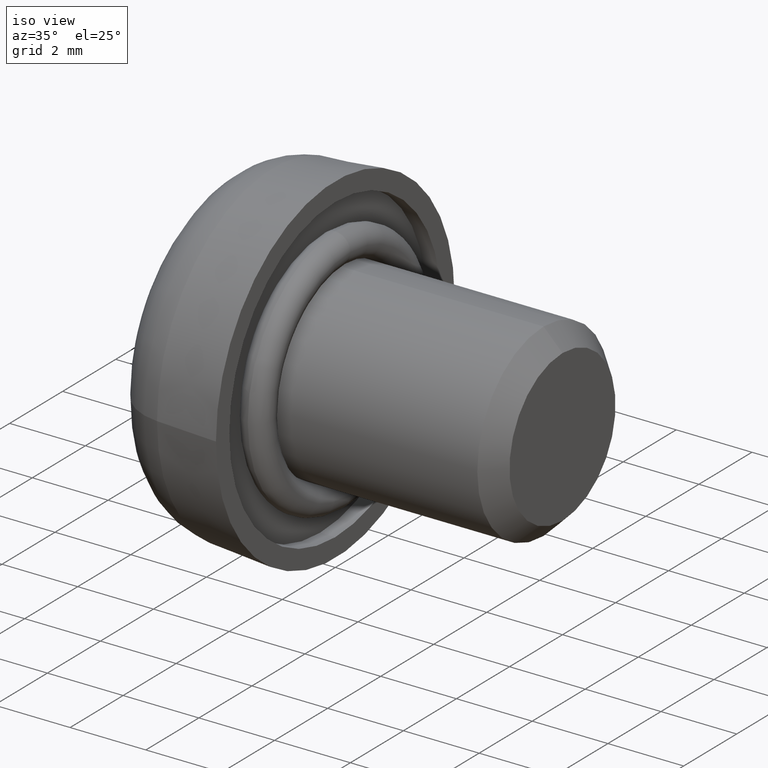
[diagram: clean part render]
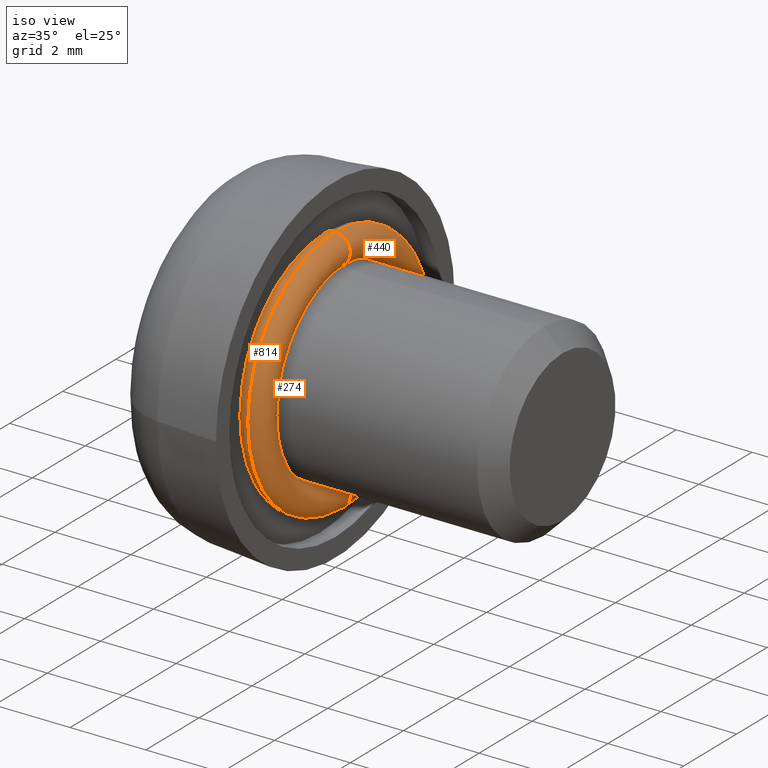
[diagram: same view with one multi-face feature highlighted, each face labeled with its STEP entity id]
A machine part, iso view. The highlighted faces form ONE feature: a constant-radius fillet chain: 3 tangent blend faces with common blend radius 0.4 mm. The faces share edges in the B-rep.
Their STEP definitions:
[1] entity #274 (Torus):
#43 = CARTESIAN_POINT ( 'NONE',  ( 0.0000000000000000000, 0.0000000000000000000, 0.0000000000000000000 ) ) ;
#64 = AXIS2_PLACEMENT_3D ( 'NONE', #313, #1007, #1226 ) ;
#66 = EDGE_CURVE ( 'NONE', #695, #1126, #896, .T. ) ;
#155 = VERTEX_POINT ( 'NONE', #194 ) ;
#185 = FACE_OUTER_BOUND ( 'NONE', #783, .T. ) ;
#194 = CARTESIAN_POINT ( 'NONE',  ( -4.898587196589412500E-017, 0.0000000000000000000, -2.499999999999999600 ) ) ;
#234 = DIRECTION ( 'NONE',  ( 0.0000000000000000000, 0.0000000000000000000, -1.000000000000000000 ) ) ;
#274 = ADVANCED_FACE ( 'NONE', ( #185 ), #1209, .T. ) ;
#284 = AXIS2_PLACEMENT_3D ( 'NONE', #872, #290, #389 ) ;
#290 = DIRECTION ( 'NONE',  ( 1.000000000000000000, -0.0000000000000000000, -0.0000000000000000000 ) ) ;
#313 = CARTESIAN_POINT ( 'NONE',  ( 0.0000000000000000000, 0.0000000000000000000, 0.0000000000000000000 ) ) ;
#318 = CARTESIAN_POINT ( 'NONE',  ( -4.898587196589412500E-017, 3.061616997868382600E-016, 2.499999999999999600 ) ) ;
#389 = DIRECTION ( 'NONE',  ( 0.0000000000000000000, 0.0000000000000000000, -1.000000000000000000 ) ) ;
#404 = CARTESIAN_POINT ( 'NONE',  ( 0.0000000000000000000, 4.041334437186265500E-016, 3.299999999999999800 ) ) ;
#458 = ORIENTED_EDGE ( 'NONE', *, *, #938, .T. ) ;
#495 = CARTESIAN_POINT ( 'NONE',  ( 0.0000000000000000000, 3.551475717527323800E-016, 2.899999999999999900 ) ) ;
#558 = ORIENTED_EDGE ( 'NONE', *, *, #764, .F. ) ;
#583 = CARTESIAN_POINT ( 'NONE',  ( 0.0000000000000000000, 0.0000000000000000000, -3.299999999999999800 ) ) ;
#673 = DIRECTION ( 'NONE',  ( -0.0000000000000000000, -1.000000000000000000, -0.0000000000000000000 ) ) ;
#695 = VERTEX_POINT ( 'NONE', #404 ) ;
#737 = ORIENTED_EDGE ( 'NONE', *, *, #908, .T. ) ;
#740 = CIRCLE ( 'NONE', #284, 2.499999999999999600 ) ;
#764 = EDGE_CURVE ( 'NONE', #1126, #155, #740, .T. ) ;
#783 = EDGE_LOOP ( 'NONE', ( #954, #458, #737, #558 ) ) ;
#821 = DIRECTION ( 'NONE',  ( 1.000000000000000000, -0.0000000000000000000, -0.0000000000000000000 ) ) ;
#837 = CIRCLE ( 'NONE', #1074, 0.4000000000000001900 ) ;
#852 = AXIS2_PLACEMENT_3D ( 'NONE', #43, #821, #234 ) ;
#872 = CARTESIAN_POINT ( 'NONE',  ( -4.898587196589413700E-017, 0.0000000000000000000, 0.0000000000000000000 ) ) ;
#896 = CIRCLE ( 'NONE', #1029, 0.4000000000000001900 ) ;
#908 = EDGE_CURVE ( 'NONE', #1144, #155, #837, .T. ) ;
#925 = CARTESIAN_POINT ( 'NONE',  ( 0.0000000000000000000, 0.0000000000000000000, -2.899999999999999900 ) ) ;
#938 = EDGE_CURVE ( 'NONE', #695, #1144, #1069, .T. ) ;
#954 = ORIENTED_EDGE ( 'NONE', *, *, #66, .F. ) ;
#1007 = DIRECTION ( 'NONE',  ( 1.000000000000000000, -0.0000000000000000000, -0.0000000000000000000 ) ) ;
#1029 = AXIS2_PLACEMENT_3D ( 'NONE', #495, #1191, #1097 ) ;
#1069 = CIRCLE ( 'NONE', #64, 3.299999999999999800 ) ;
#1074 = AXIS2_PLACEMENT_3D ( 'NONE', #925, #673, #1087 ) ;
#1087 = DIRECTION ( 'NONE',  ( 0.0000000000000000000, 0.0000000000000000000, -1.000000000000000000 ) ) ;
#1097 = DIRECTION ( 'NONE',  ( 0.0000000000000000000, 1.224646799147353200E-016, 1.000000000000000000 ) ) ;
#1126 = VERTEX_POINT ( 'NONE', #318 ) ;
#1144 = VERTEX_POINT ( 'NONE', #583 ) ;
#1191 = DIRECTION ( 'NONE',  ( 0.0000000000000000000, 1.000000000000000000, -1.224646799147353200E-016 ) ) ;
#1209 = TOROIDAL_SURFACE ( 'NONE', #852, 2.899999999999999900, 0.4000000000000000800 ) ;
#1226 = DIRECTION ( 'NONE',  ( 0.0000000000000000000, 0.0000000000000000000, -1.000000000000000000 ) ) ;
[2] entity #814 (Torus):
#35 = DIRECTION ( 'NONE',  ( 1.000000000000000000, -0.0000000000000000000, -0.0000000000000000000 ) ) ;
#64 = AXIS2_PLACEMENT_3D ( 'NONE', #313, #1007, #1226 ) ;
#106 = CIRCLE ( 'NONE', #1093, 0.4000000000000001900 ) ;
#118 = DIRECTION ( 'NONE',  ( -0.0000000000000000000, -1.000000000000000000, -0.0000000000000000000 ) ) ;
#155 = VERTEX_POINT ( 'NONE', #194 ) ;
#194 = CARTESIAN_POINT ( 'NONE',  ( -4.898587196589412500E-017, 0.0000000000000000000, -2.499999999999999600 ) ) ;
#195 = ORIENTED_EDGE ( 'NONE', *, *, #938, .F. ) ;
#207 = CARTESIAN_POINT ( 'NONE',  ( 0.0000000000000000000, 0.0000000000000000000, -2.899999999999999900 ) ) ;
#284 = AXIS2_PLACEMENT_3D ( 'NONE', #872, #290, #389 ) ;
#290 = DIRECTION ( 'NONE',  ( 1.000000000000000000, -0.0000000000000000000, -0.0000000000000000000 ) ) ;
#303 = AXIS2_PLACEMENT_3D ( 'NONE', #377, #566, #672 ) ;
#313 = CARTESIAN_POINT ( 'NONE',  ( 0.0000000000000000000, 0.0000000000000000000, 0.0000000000000000000 ) ) ;
#318 = CARTESIAN_POINT ( 'NONE',  ( -4.898587196589412500E-017, 3.061616997868382600E-016, 2.499999999999999600 ) ) ;
#338 = ORIENTED_EDGE ( 'NONE', *, *, #1163, .F. ) ;
#363 = CIRCLE ( 'NONE', #303, 0.4000000000000001900 ) ;
#377 = CARTESIAN_POINT ( 'NONE',  ( 0.0000000000000000000, 3.551475717527323800E-016, 2.899999999999999900 ) ) ;
#389 = DIRECTION ( 'NONE',  ( 0.0000000000000000000, 0.0000000000000000000, -1.000000000000000000 ) ) ;
#404 = CARTESIAN_POINT ( 'NONE',  ( 0.0000000000000000000, 4.041334437186265500E-016, 3.299999999999999800 ) ) ;
#473 = TOROIDAL_SURFACE ( 'NONE', #745, 2.899999999999999900, 0.4000000000000000800 ) ;
#481 = EDGE_LOOP ( 'NONE', ( #195, #338, #1049, #1204 ) ) ;
#484 = EDGE_CURVE ( 'NONE', #155, #1144, #106, .T. ) ;
#566 = DIRECTION ( 'NONE',  ( 0.0000000000000000000, 1.000000000000000000, -1.224646799147353200E-016 ) ) ;
#583 = CARTESIAN_POINT ( 'NONE',  ( 0.0000000000000000000, 0.0000000000000000000, -3.299999999999999800 ) ) ;
#672 = DIRECTION ( 'NONE',  ( 0.0000000000000000000, 1.224646799147353200E-016, 1.000000000000000000 ) ) ;
#695 = VERTEX_POINT ( 'NONE', #404 ) ;
#740 = CIRCLE ( 'NONE', #284, 2.499999999999999600 ) ;
#745 = AXIS2_PLACEMENT_3D ( 'NONE', #1113, #35, #1188 ) ;
#764 = EDGE_CURVE ( 'NONE', #1126, #155, #740, .T. ) ;
#814 = ADVANCED_FACE ( 'NONE', ( #945 ), #473, .T. ) ;
#872 = CARTESIAN_POINT ( 'NONE',  ( -4.898587196589413700E-017, 0.0000000000000000000, 0.0000000000000000000 ) ) ;
#938 = EDGE_CURVE ( 'NONE', #695, #1144, #1069, .T. ) ;
#945 = FACE_OUTER_BOUND ( 'NONE', #481, .T. ) ;
#1007 = DIRECTION ( 'NONE',  ( 1.000000000000000000, -0.0000000000000000000, -0.0000000000000000000 ) ) ;
#1016 = DIRECTION ( 'NONE',  ( 0.0000000000000000000, 0.0000000000000000000, -1.000000000000000000 ) ) ;
#1049 = ORIENTED_EDGE ( 'NONE', *, *, #764, .T. ) ;
#1069 = CIRCLE ( 'NONE', #64, 3.299999999999999800 ) ;
#1093 = AXIS2_PLACEMENT_3D ( 'NONE', #207, #118, #1016 ) ;
#1113 = CARTESIAN_POINT ( 'NONE',  ( 0.0000000000000000000, 0.0000000000000000000, 0.0000000000000000000 ) ) ;
#1126 = VERTEX_POINT ( 'NONE', #318 ) ;
#1144 = VERTEX_POINT ( 'NONE', #583 ) ;
#1163 = EDGE_CURVE ( 'NONE', #1126, #695, #363, .T. ) ;
#1188 = DIRECTION ( 'NONE',  ( 0.0000000000000000000, 0.0000000000000000000, -1.000000000000000000 ) ) ;
#1204 = ORIENTED_EDGE ( 'NONE', *, *, #484, .T. ) ;
#1226 = DIRECTION ( 'NONE',  ( 0.0000000000000000000, 0.0000000000000000000, -1.000000000000000000 ) ) ;
[3] entity #440 (Torus):
#14 = CARTESIAN_POINT ( 'NONE',  ( 0.0000000000000000000, 0.0000000000000000000, 0.0000000000000000000 ) ) ;
#66 = EDGE_CURVE ( 'NONE', #695, #1126, #896, .T. ) ;
#67 = ORIENTED_EDGE ( 'NONE', *, *, #66, .T. ) ;
#127 = CIRCLE ( 'NONE', #1011, 3.299999999999999800 ) ;
#154 = ORIENTED_EDGE ( 'NONE', *, *, #908, .F. ) ;
#155 = VERTEX_POINT ( 'NONE', #194 ) ;
#193 = ORIENTED_EDGE ( 'NONE', *, *, #252, .F. ) ;
#194 = CARTESIAN_POINT ( 'NONE',  ( -4.898587196589412500E-017, 0.0000000000000000000, -2.499999999999999600 ) ) ;
#210 = CARTESIAN_POINT ( 'NONE',  ( 0.0000000000000000000, 0.0000000000000000000, 0.0000000000000000000 ) ) ;
#252 = EDGE_CURVE ( 'NONE', #155, #1126, #968, .T. ) ;
#296 = DIRECTION ( 'NONE',  ( 0.0000000000000000000, 0.0000000000000000000, -1.000000000000000000 ) ) ;
#318 = CARTESIAN_POINT ( 'NONE',  ( -4.898587196589412500E-017, 3.061616997868382600E-016, 2.499999999999999600 ) ) ;
#404 = CARTESIAN_POINT ( 'NONE',  ( 0.0000000000000000000, 4.041334437186265500E-016, 3.299999999999999800 ) ) ;
#440 = ADVANCED_FACE ( 'NONE', ( #687 ), #1224, .T. ) ;
#495 = CARTESIAN_POINT ( 'NONE',  ( 0.0000000000000000000, 3.551475717527323800E-016, 2.899999999999999900 ) ) ;
#531 = DIRECTION ( 'NONE',  ( 0.0000000000000000000, 0.0000000000000000000, -1.000000000000000000 ) ) ;
#583 = CARTESIAN_POINT ( 'NONE',  ( 0.0000000000000000000, 0.0000000000000000000, -3.299999999999999800 ) ) ;
#585 = EDGE_LOOP ( 'NONE', ( #154, #978, #67, #193 ) ) ;
#601 = AXIS2_PLACEMENT_3D ( 'NONE', #735, #617, #531 ) ;
#602 = DIRECTION ( 'NONE',  ( 1.000000000000000000, -0.0000000000000000000, -0.0000000000000000000 ) ) ;
#617 = DIRECTION ( 'NONE',  ( 1.000000000000000000, -0.0000000000000000000, -0.0000000000000000000 ) ) ;
#656 = EDGE_CURVE ( 'NONE', #1144, #695, #127, .T. ) ;
#673 = DIRECTION ( 'NONE',  ( -0.0000000000000000000, -1.000000000000000000, -0.0000000000000000000 ) ) ;
#687 = FACE_OUTER_BOUND ( 'NONE', #585, .T. ) ;
#695 = VERTEX_POINT ( 'NONE', #404 ) ;
#735 = CARTESIAN_POINT ( 'NONE',  ( -4.898587196589413700E-017, 0.0000000000000000000, 0.0000000000000000000 ) ) ;
#786 = DIRECTION ( 'NONE',  ( 1.000000000000000000, -0.0000000000000000000, -0.0000000000000000000 ) ) ;
#837 = CIRCLE ( 'NONE', #1074, 0.4000000000000001900 ) ;
#896 = CIRCLE ( 'NONE', #1029, 0.4000000000000001900 ) ;
#908 = EDGE_CURVE ( 'NONE', #1144, #155, #837, .T. ) ;
#925 = CARTESIAN_POINT ( 'NONE',  ( 0.0000000000000000000, 0.0000000000000000000, -2.899999999999999900 ) ) ;
#959 = AXIS2_PLACEMENT_3D ( 'NONE', #210, #786, #296 ) ;
#968 = CIRCLE ( 'NONE', #601, 2.499999999999999600 ) ;
#978 = ORIENTED_EDGE ( 'NONE', *, *, #656, .T. ) ;
#1011 = AXIS2_PLACEMENT_3D ( 'NONE', #14, #602, #1194 ) ;
#1029 = AXIS2_PLACEMENT_3D ( 'NONE', #495, #1191, #1097 ) ;
#1074 = AXIS2_PLACEMENT_3D ( 'NONE', #925, #673, #1087 ) ;
#1087 = DIRECTION ( 'NONE',  ( 0.0000000000000000000, 0.0000000000000000000, -1.000000000000000000 ) ) ;
#1097 = DIRECTION ( 'NONE',  ( 0.0000000000000000000, 1.224646799147353200E-016, 1.000000000000000000 ) ) ;
#1126 = VERTEX_POINT ( 'NONE', #318 ) ;
#1144 = VERTEX_POINT ( 'NONE', #583 ) ;
#1191 = DIRECTION ( 'NONE',  ( 0.0000000000000000000, 1.000000000000000000, -1.224646799147353200E-016 ) ) ;
#1194 = DIRECTION ( 'NONE',  ( 0.0000000000000000000, 0.0000000000000000000, -1.000000000000000000 ) ) ;
#1224 = TOROIDAL_SURFACE ( 'NONE', #959, 2.899999999999999900, 0.4000000000000000800 ) ;